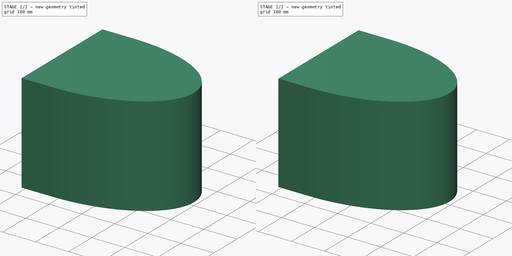
[diagram: build sequence overview — one tinted view per stage of 2, left to right]
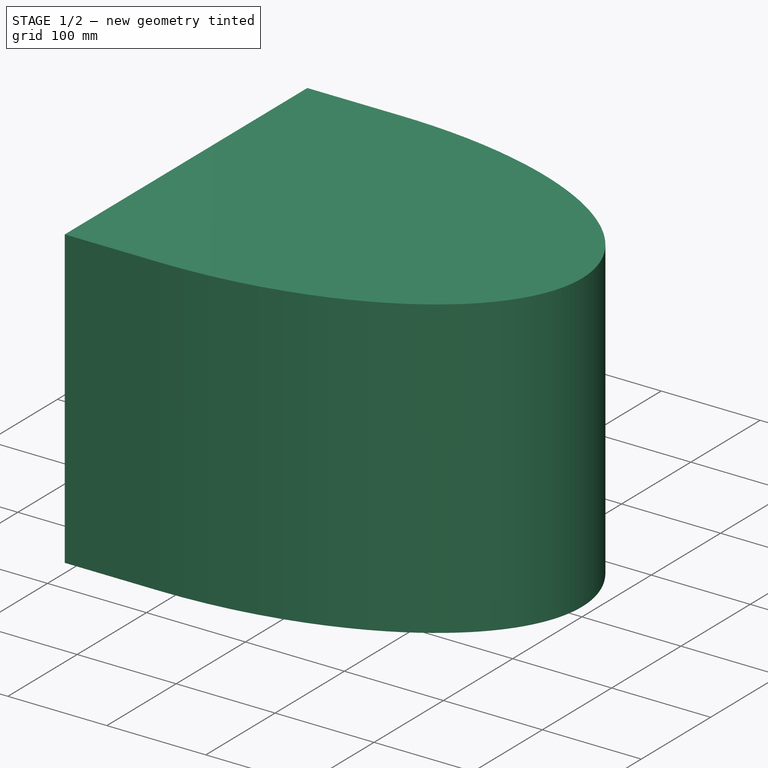
[diagram: stage 1 of 2 — iso view after this stage's code; geometry added in this stage tinted green]
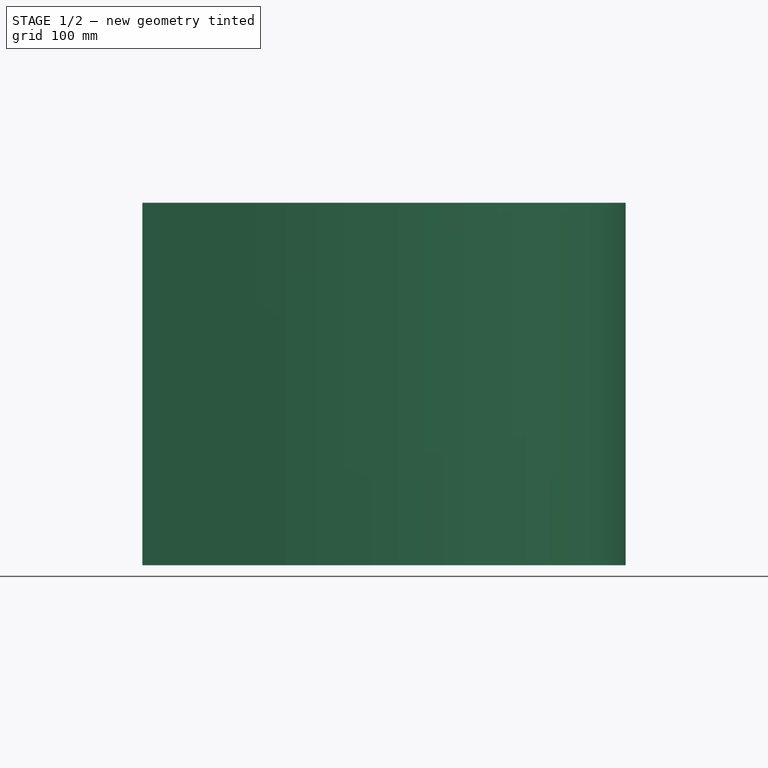
[diagram: stage 1 of 2 — front view after this stage's code; geometry added in this stage tinted green]
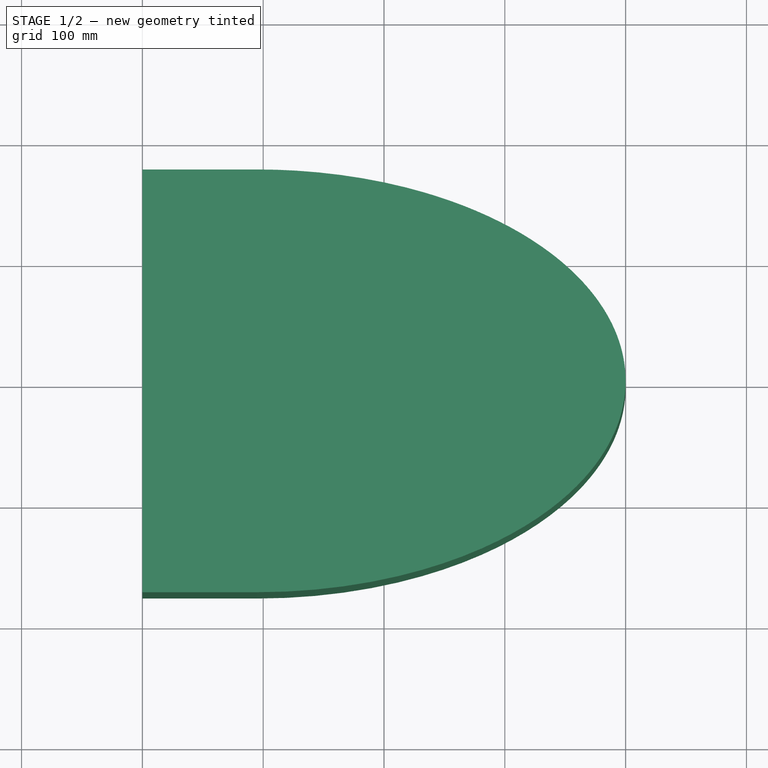
[diagram: stage 1 of 2 — top view after this stage's code; geometry added in this stage tinted green]
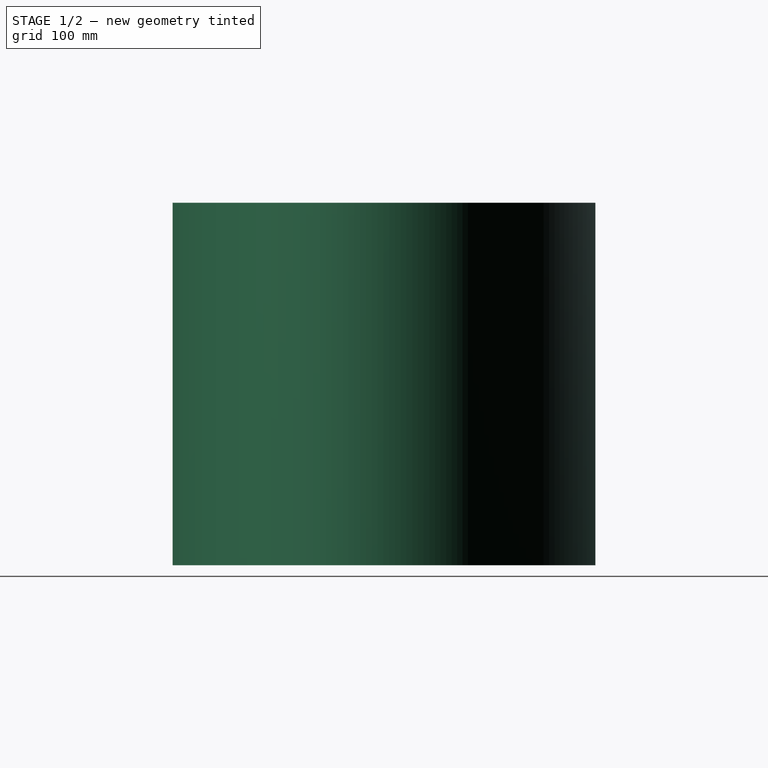
[diagram: stage 1 of 2 — right view after this stage's code; geometry added in this stage tinted green]
FCSTD DOCUMENT  (FreeCAD 0.20R29410 (Git))
Label: Tailbox
License: All rights reserved
LicenseURL: http://en.wikipedia.org/wiki/All_rights_reserved
objects: Sketcher::SketchObject×2, Spreadsheet::Sheet×1, PartDesign::Pad×1, PartDesign::Thickness×1, PartDesign::Body×1
note: 7 computed .brp shape members not serialized (recipe doc carries the construction recipe); baked Part::Feature solids carry a one-line shape summary decoded from their .brp

FEATURE [Spreadsheet::Sheet] Spreadsheet  label="dims"
  cells = A1=length; B1(length)=400; A2=width; B2(width)=350; A3=height; B3(height)=300; A4=taper_angle; B4(taper_angle)=45; A5=tip_radius; B5(tip_radius)=100; A6=thickness; B6(thickness)=1.5; A7=straight_dist; B7(straight_dist)=140; A8=bolt_inset; B8(bolt_inset)=12; A9=corner_radius; B9(corner_radius)=35; A10=bolt_d; B10(bolt_d)=4.2; A11=corner_bolt_offset; B11(corner_bolt_offset)=5; A12=rack_outer_width; B12(rack_outer_width)=200; A13=rack_tube_diameter; B13(rack_tube_diameter)=10; A14=rack_mount_bolt_width; B14(rack_mount_bolt_width)==ceil(rack_tube_diameter + floor(bolt_d) + 1); A15=rack_length; B15(rack_length)=250
FEATURE [Sketcher::SketchObject] Sketch
  FullyConstrained = false
  MapMode = 5
  Support = -> [XY_Plane]
  expr: Constraints[12] = Spreadsheet.length
  expr: Constraints[16] = Spreadsheet.width
  sketch-geometry (8):
    g0: LineSegment StartX=0 StartY=175 StartZ=0 EndX=95.031 EndY=175 EndZ=0
    g1: LineSegment StartX=0 StartY=-175 StartZ=0 EndX=95.0306 EndY=-175 EndZ=0
    g2: ArcOfEllipse CenterX=95.0308 CenterY=0 CenterZ=0 NormalX=0 NormalY=0 NormalZ=1 MajorRadius=304.969 MinorRadius=175 AngleXU=0 StartAngle=4.71239 EndAngle=7.85398
    g3: LineSegment StartX=400 StartY=0 StartZ=0 EndX=-209.938 EndY=0 EndZ=0
    g4: LineSegment StartX=95.0308 StartY=175 StartZ=0 EndX=95.0308 EndY=-175 EndZ=0
    g5: GeomPoint X=344.793 Y=0 Z=0
    g6: GeomPoint X=-154.731 Y=0 Z=0
    g7: LineSegment StartX=0 StartY=175 StartZ=0 EndX=0 EndY=-175 EndZ=0
  constraints (14):
    c: PointOnObject(g0,g-2)
    c: Horizontal(g0)
    c: Horizontal(g1)
    c: InternalAlignment(g3-g6 -> g2) x4
    c: PointOnObject(g2,g-1)
    c: Symmetric(g0,g1,g-1)
    c: Coincident(g0,g2)
    c: Coincident(g1,g2)
    c: Horizontal(g3,g2)
    c: DistanceX(g3) = 400
    c: Horizontal(g0,g4)
    c: Coincident(g7,g0)
    c: Coincident(g7,g1)
    c: DistanceY(g7,g7) = 350
FEATURE [PartDesign::Pad] Pad
  AlongSketchNormal = false
  Direction = (0,0,1)
  Length = 300
  Length2 = 0
  Profile = -> Sketch
  Type = 4
  expr: Length = Spreadsheet.height
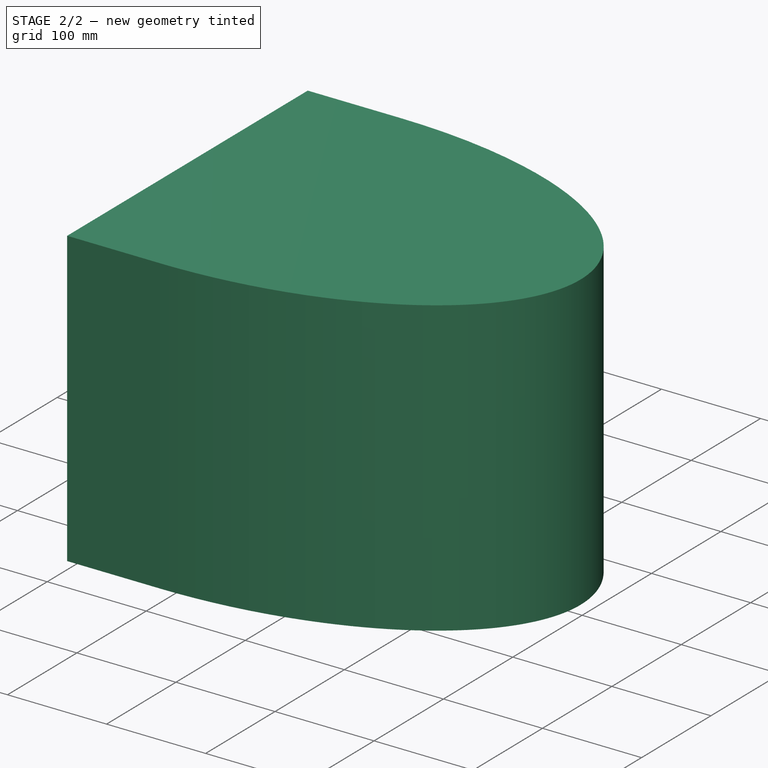
[diagram: stage 2 of 2 — iso view after this stage's code; geometry added in this stage tinted green]
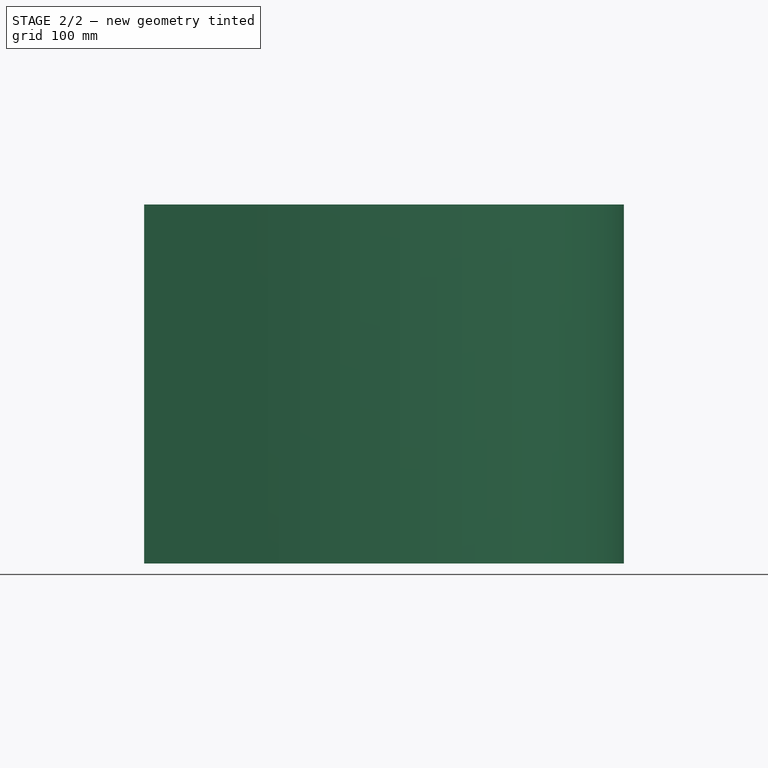
[diagram: stage 2 of 2 — front view after this stage's code; geometry added in this stage tinted green]
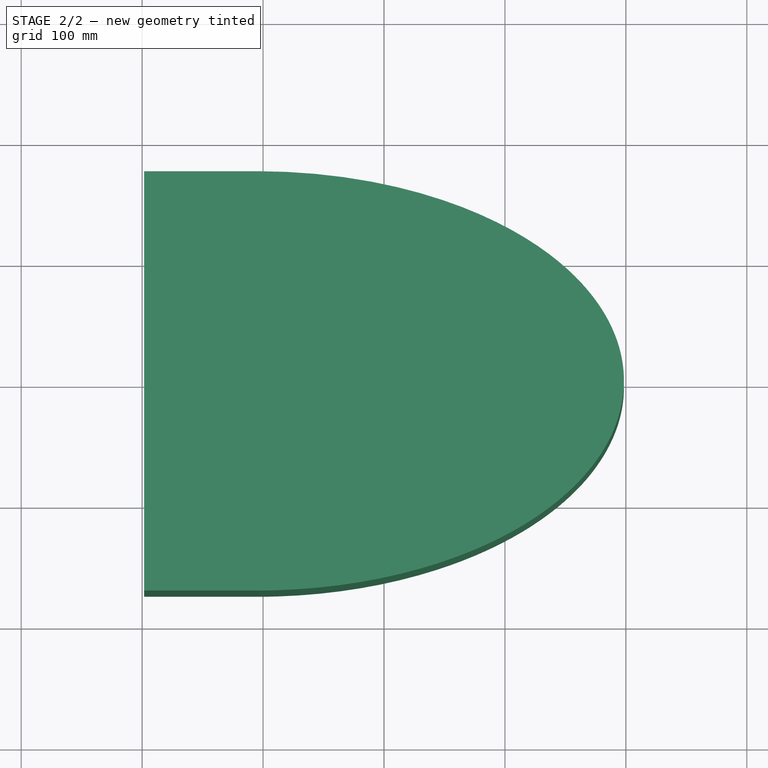
[diagram: stage 2 of 2 — top view after this stage's code; geometry added in this stage tinted green]
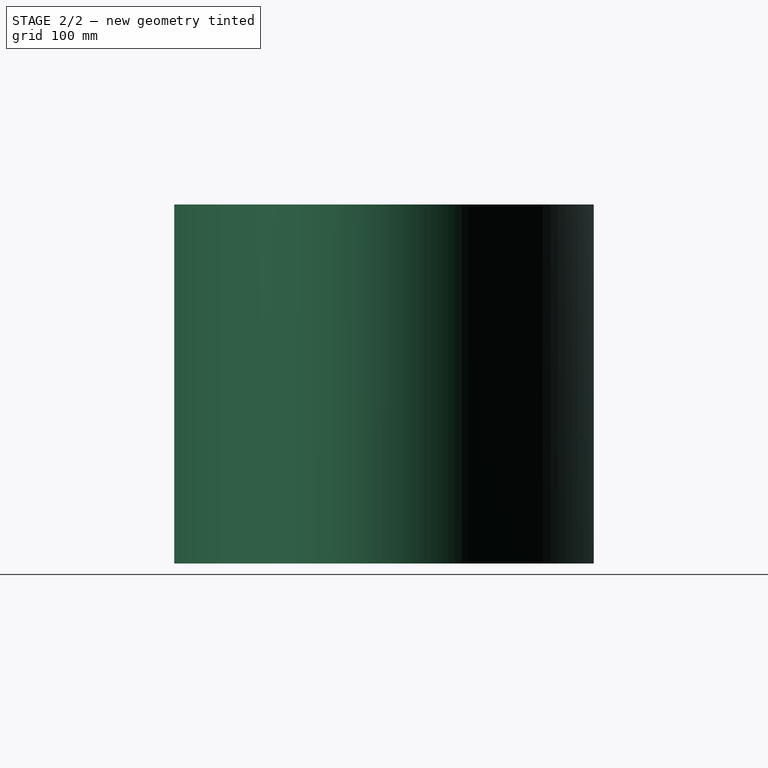
[diagram: stage 2 of 2 — right view after this stage's code; geometry added in this stage tinted green]
FEATURE [PartDesign::Thickness] Thickness
  Base = -> Pad
  BaseFeature = -> Pad
  Intersection = false
  Join = 0
  Mode = 0
  Refine = true
  Reversed = true
  SupportTransform = false
  Value = 1.6
FEATURE [PartDesign::Body] Body  label="simple_shell"
  Group = -> [Sketch,Pad,Thickness]
  Origin = -> Origin
  Tip = -> Thickness
FEATURE [Sketcher::SketchObject] Sketch003  label="base_sketch"
  FullyConstrained = false
  MapMode = 5
  Support = -> [XY_Plane]
  expr: Constraints[24] = <<dims>>.tip_radius
  expr: Constraints[25] = <<dims>>.straight_dist
  expr: Constraints[26] = <<dims>>.taper_angle
  expr: Constraints[6] = Spreadsheet.width
  expr: Constraints[7] = Spreadsheet.length
  sketch-geometry (12):
    g0: LineSegment StartX=0 StartY=-175 StartZ=0 EndX=0 EndY=175 EndZ=0
    g1: ArcOfEllipse CenterX=13.2547 CenterY=0 CenterZ=0 NormalX=0 NormalY=0 NormalZ=1 MajorRadius=386.745 MinorRadius=185.23 AngleXU=0 StartAngle=5.05006 EndAngle=7.52009
    g2: LineSegment StartX=400 StartY=0 StartZ=0 EndX=-373.491 EndY=0 EndZ=0
    g3: GeomPoint X=352.757 Y=0 Z=0
    g4: GeomPoint X=-326.248 Y=0 Z=0
    g5: ArcOfCircle CenterX=300 CenterY=0 CenterZ=0 NormalX=0 NormalY=0 NormalZ=1 AngleXU=0 Radius=100 StartAngle=5.49779 EndAngle=7.06858
    g6: LineSegment StartX=370.711 StartY=-70.7107 StartZ=0 EndX=355.815 EndY=-85.6066 EndZ=0
    g7: LineSegment StartX=370.711 StartY=70.7107 StartZ=0 EndX=355.815 EndY=85.6066 EndZ=0
    g8: LineSegment StartX=0 StartY=175 StartZ=0 EndX=140 EndY=175 EndZ=0
    g9: LineSegment StartX=0 StartY=-175 StartZ=0 EndX=140 EndY=-175 EndZ=0
    g10: ArcOfCircle CenterX=140 CenterY=-130.208 CenterZ=0 NormalX=0 NormalY=0 NormalZ=1 AngleXU=0 Radius=305.208 StartAngle=0.785398 EndAngle=1.5708
    g11: ArcOfCircle CenterX=140 CenterY=130.208 CenterZ=0 NormalX=0 NormalY=0 NormalZ=1 AngleXU=0 Radius=305.208 StartAngle=4.71239 EndAngle=5.49779
  constraints (28):
    c: PointOnObject(g0,g-2)
    c: Vertical(g0)
    c: InternalAlignment(g2,g1)
    c: InternalAlignment(g3,g1)
    c: InternalAlignment(g4,g1)
    c: PointOnObject(g1,g-1)
    c: DistanceY(g0,g0) = 350
    c: DistanceX(g2) = 400
    c: PointOnObject(g2,g5)
    c: PointOnObject(g5,g-1)
    c: Symmetric(g0,g0,g2)
    c: Coincident(g8,g0)
    c: Horizontal(g8)
    c: Coincident(g9,g0)
    c: Horizontal(g9)
    c: Tangent(g11,g9) = -1.5708
    c: Tangent(g11,g6) = 1.5708
    c: Tangent(g7,g5) = -1.5708
    c: Tangent(g10,g7) = -1.5708
    c: Tangent(g6,g5) = 1.5708
    c: PointOnObject(g5,g1)
    c: Equal(g6,g7)
    c: Tangent(g10,g8) = 1.5708
    c: Equal(g11,g10)
    c: Radius(g5) = 100
    c: DistanceX(g8,g8) = 140
    c: Angle(g7,g2) = 0.785398
    c: Coincident(g1,g8)
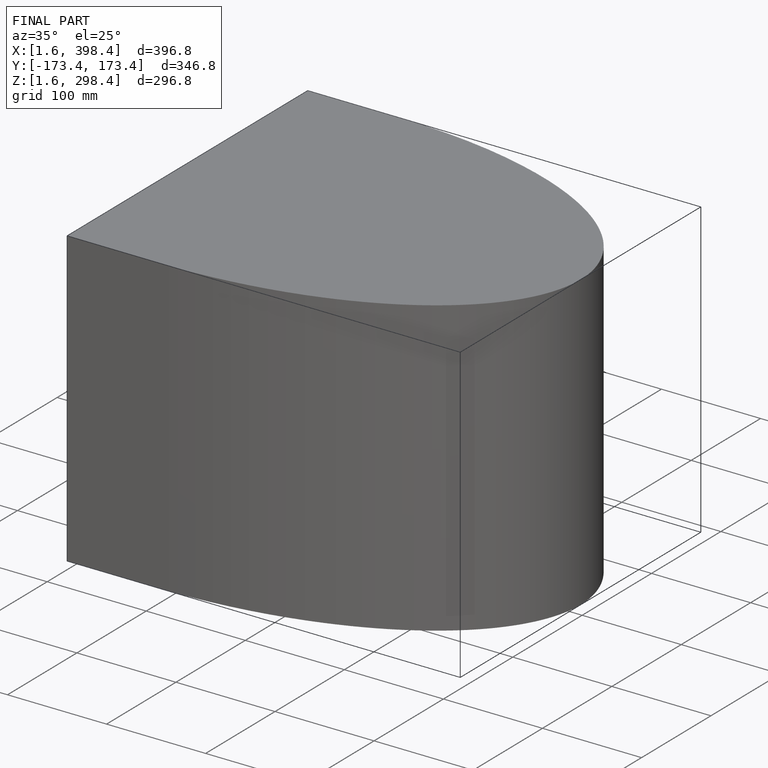
[diagram: finished part — iso view with bounding-box wireframe]
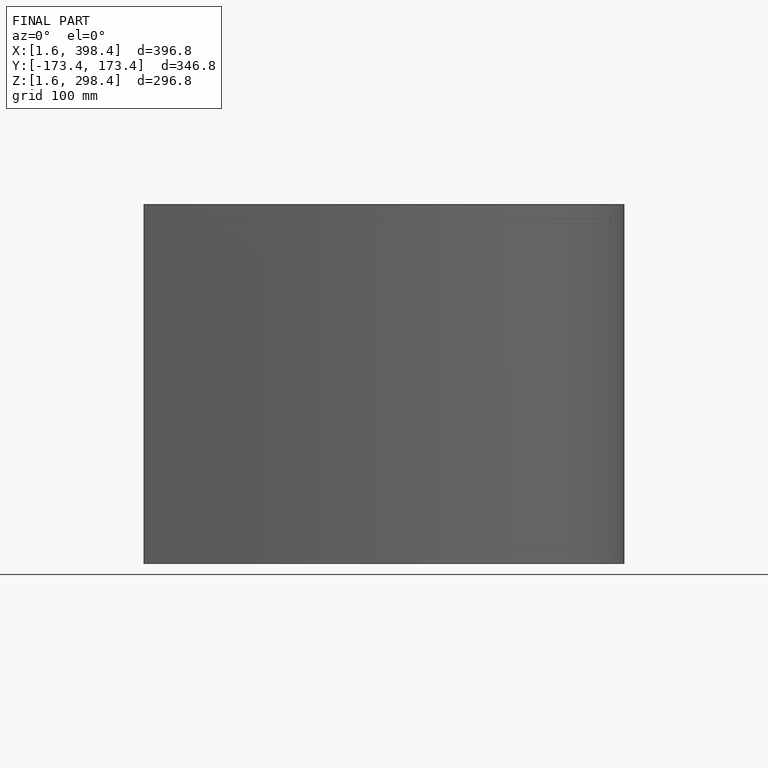
[diagram: finished part — front view with bounding-box wireframe]
